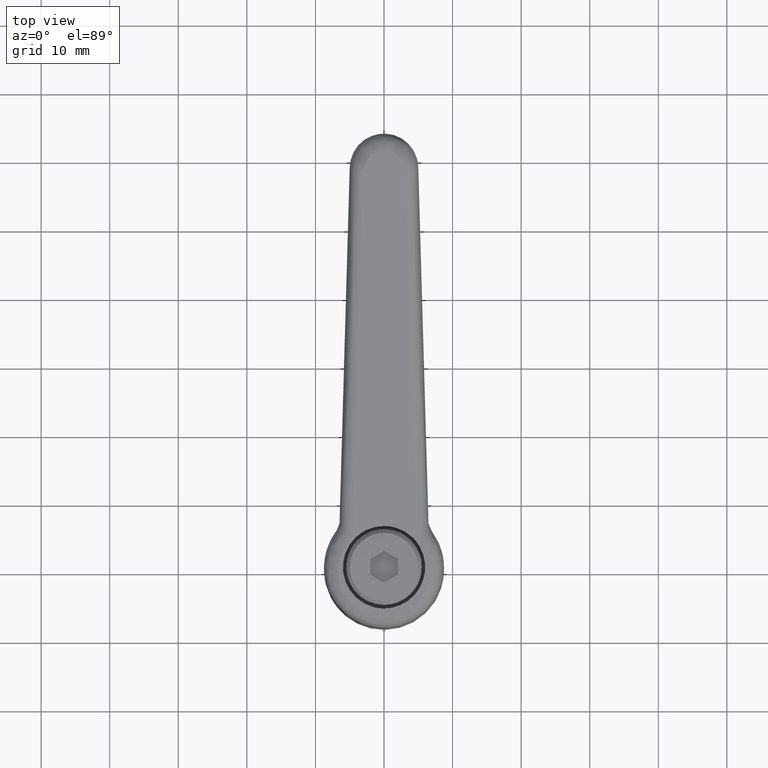
[diagram: clean part render]
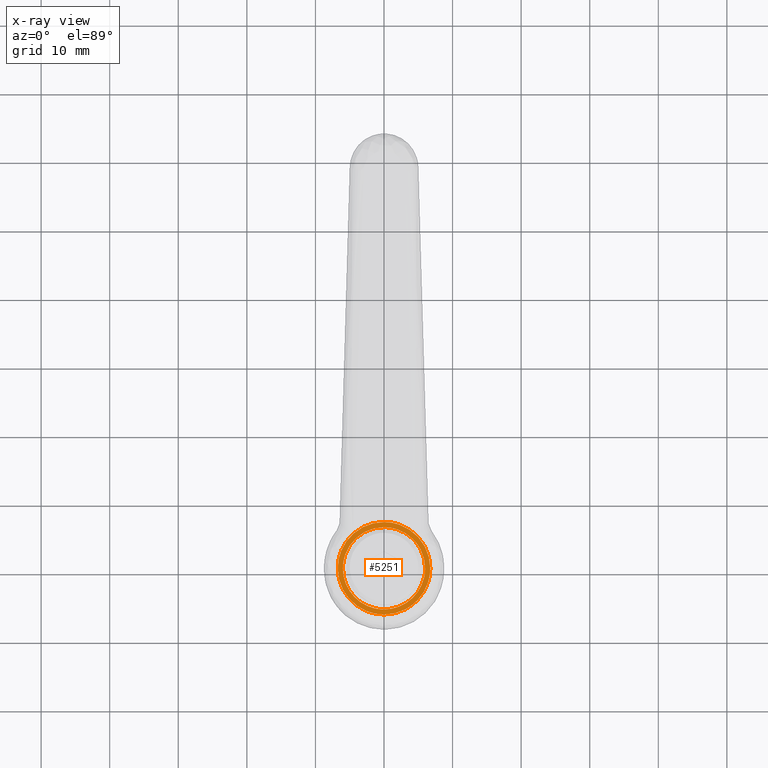
[diagram: x-ray — body ghosted, one internal face saturated and labeled with its STEP entity id]
A machine part, top view, then the same camera in x-ray: the body is ghosted and one INTERNAL B-rep face — a face not visible from any outside direction — is saturated and labeled: STEP entity #5251.
In plain terms, the highlighted face is a freeform B-spline surface patch.
Its self-contained STEP definition (entity closure, byte-faithful):
#1597=CARTESIAN_POINT('',(-6.750000000000000,0.0,20.0));
#1598=VERTEX_POINT('',#1597);
#1599=CARTESIAN_POINT('',(-4.707665798021076,-4.837393944738751,19.999999999999151));
#1600=VERTEX_POINT('',#1599);
#1601=CARTESIAN_POINT('',(-6.750000000000000,0.0,20.0));
#1602=CARTESIAN_POINT('',(-6.750038185678390,-0.393254284735144,19.999999999999918));
#1603=CARTESIAN_POINT('',(-6.683526633551377,-1.151658683088132,19.999999999999851));
#1604=CARTESIAN_POINT('',(-6.391058121284464,-2.269490425884854,19.999999999999581));
#1605=CARTESIAN_POINT('',(-5.810483489630783,-3.554267981150975,19.999999999999439));
#1606=CARTESIAN_POINT('',(-5.170879859645112,-4.386982033101055,19.999999999999211));
#1607=CARTESIAN_POINT('',(-4.707665798021076,-4.837393944738751,19.999999999999151));
#1608=B_SPLINE_CURVE_WITH_KNOTS('',3,(#1601,#1602,#1603,#1604,#1605,#1606,#1607),.UNSPECIFIED.,.F.,.U.,(4,1,1,1,4),(0.000000010771218,1.179762185913205,2.275270016881943,3.455019347370328,5.393207026882043),.UNSPECIFIED.);
#1609=EDGE_CURVE('',#1598,#1600,#1608,.T.);
#1679=CARTESIAN_POINT('',(4.560234038271471,-4.976622154126911,20.000000000000099));
#1680=VERTEX_POINT('',#1679);
#1686=CARTESIAN_POINT('',(6.750000000000000,0.0,20.0));
#1687=VERTEX_POINT('',#1686);
#1688=CARTESIAN_POINT('',(4.560234038271471,-4.976622154126911,20.000000000000099));
#1689=CARTESIAN_POINT('',(4.925607465358238,-4.641948461021785,20.000000000000071));
#1690=CARTESIAN_POINT('',(5.485500913950914,-4.001938006583835,20.000000000000099));
#1691=CARTESIAN_POINT('',(6.151828972380275,-2.867643784168084,20.000000000000060));
#1692=CARTESIAN_POINT('',(6.623736119077808,-1.573802544141939,20.000000000000039));
#1693=CARTESIAN_POINT('',(6.750149775756673,-0.553783316505794,20.000000000000028));
#1694=CARTESIAN_POINT('',(6.750000000000000,0.0,20.0));
#1695=B_SPLINE_CURVE_WITH_KNOTS('',3,(#1688,#1689,#1690,#1691,#1692,#1693,#1694),.UNSPECIFIED.,.F.,.U.,(4,1,1,1,4),(9.224710E-009,1.486438053548430,2.535695742643572,3.934686411821348,5.596001101551710),.UNSPECIFIED.);
#1696=EDGE_CURVE('',#1680,#1687,#1695,.T.);
#1698=CARTESIAN_POINT('',(-0.000000758071952,6.749999999999957,20.0));
#1699=VERTEX_POINT('',#1698);
#1700=CARTESIAN_POINT('',(6.750000000000000,0.0,20.0));
#1701=CARTESIAN_POINT('',(6.750056323670788,0.441789205045798,20.000000000000039));
#1702=CARTESIAN_POINT('',(6.671092770518670,1.242504208813118,19.999999999999940));
#1703=CARTESIAN_POINT('',(6.323771332923881,2.468446269922626,20.000000000000071));
#1704=CARTESIAN_POINT('',(5.842914248746077,3.438523456837903,19.999999999999989));
#1705=CARTESIAN_POINT('',(5.232508223821158,4.293904337446858,20.000000000000011));
#1706=CARTESIAN_POINT('',(4.497695625690686,5.085085511637447,19.999999999999918));
#1707=CARTESIAN_POINT('',(3.426653323212183,5.879447754692555,20.000000000000050));
#1708=CARTESIAN_POINT('',(2.156776649321563,6.442326779934655,20.000000000000199));
#1709=CARTESIAN_POINT('',(0.994010837295494,6.703345652593730,19.999999999999869));
#1710=CARTESIAN_POINT('',(0.303721785535678,6.750006392036436,19.999999999999940));
#1711=CARTESIAN_POINT('',(-0.000000758071952,6.749999999999957,20.0));
#1712=B_SPLINE_CURVE_WITH_KNOTS('',3,(#1700,#1701,#1702,#1703,#1704,#1705,#1706,#1707,#1708,#1709,#1710,#1711),.UNSPECIFIED.,.F.,.U.,(4,1,1,1,1,1,1,1,1,4),(0.000000041502389,1.325367248377678,2.402226640024320,3.810436648971320,4.555954236093545,5.549952506493577,7.041004735815335,8.532056593624022,9.691767720149768,10.602942161672370),.UNSPECIFIED.);
#1713=EDGE_CURVE('',#1687,#1699,#1712,.T.);
#1715=CARTESIAN_POINT('',(-0.000000758071952,6.749999999999957,20.0));
#1716=CARTESIAN_POINT('',(-0.552246733548002,6.750143378676395,19.999999999999989));
#1717=CARTESIAN_POINT('',(-1.573789559420989,6.623892309786103,20.0));
#1718=CARTESIAN_POINT('',(-3.008329577036993,6.100752785276866,19.999999999999972));
#1719=CARTESIAN_POINT('',(-4.111396341902147,5.402174830602912,20.000000000000021));
#1720=CARTESIAN_POINT('',(-4.922735265970868,4.648378233222027,19.999999999999989));
#1721=CARTESIAN_POINT('',(-5.519428854269469,3.921318995340536,20.000000000000011));
#1722=CARTESIAN_POINT('',(-6.042331124343659,3.072767087495429,20.0));
#1723=CARTESIAN_POINT('',(-6.424119718823476,2.151004093835711,20.0));
#1724=CARTESIAN_POINT('',(-6.686252901125185,1.104445950331156,19.999999999999979));
#1725=CARTESIAN_POINT('',(-6.750046853290801,0.414173856440786,20.000000000000060));
#1726=CARTESIAN_POINT('',(-6.750000000000000,0.0,20.0));
#1727=B_SPLINE_CURVE_WITH_KNOTS('',3,(#1715,#1716,#1717,#1718,#1719,#1720,#1721,#1722,#1723,#1724,#1725,#1726),.UNSPECIFIED.,.F.,.U.,(4,1,1,1,1,1,1,1,1,4),(0.000000041765933,1.656697258566371,3.064916961982017,4.555953868551320,5.549952059532936,6.378312274120171,7.372356072904725,8.532055906217398,9.360422728651365,10.602941307143229),.UNSPECIFIED.);
#1728=EDGE_CURVE('',#1699,#1598,#1727,.T.);
#1747=CARTESIAN_POINT('',(0.000000758071827,-6.749999999999957,20.0));
#1748=VERTEX_POINT('',#1747);
#1749=CARTESIAN_POINT('',(-4.707665798021076,-4.837393944738751,19.999999999999151));
#1750=CARTESIAN_POINT('',(-4.377138211324646,-5.159158331157905,19.999999999999240));
#1751=CARTESIAN_POINT('',(-3.756695359648027,-5.649830627850707,19.999999999999300));
#1752=CARTESIAN_POINT('',(-2.631219983117204,-6.256667769968110,19.999999999999559));
#1753=CARTESIAN_POINT('',(-1.410946325213157,-6.652299270372523,19.999999999999741));
#1754=CARTESIAN_POINT('',(-0.461277569862249,-6.750058371626013,19.999999999999940));
#1755=CARTESIAN_POINT('',(0.000000758071827,-6.749999999999957,20.0));
#1756=B_SPLINE_CURVE_WITH_KNOTS('',3,(#1749,#1750,#1751,#1752,#1753,#1754,#1755),.UNSPECIFIED.,.F.,.U.,(4,1,1,1,4),(0.000000011848202,1.383836352493222,2.360672957662275,3.825899106862275,5.209735376491064),.UNSPECIFIED.);
#1757=EDGE_CURVE('',#1600,#1748,#1756,.T.);
#1759=CARTESIAN_POINT('',(0.000000758071827,-6.749999999999957,20.0));
#1760=CARTESIAN_POINT('',(0.417245049452214,-6.750035969097676,20.000000000000011));
#1761=CARTESIAN_POINT('',(1.277797074981606,-6.669977280524604,20.000000000000021));
#1762=CARTESIAN_POINT('',(2.460086536325553,-6.324951810019348,20.000000000000050));
#1763=CARTESIAN_POINT('',(3.583374521852676,-5.763338750784429,20.000000000000050));
#1764=CARTESIAN_POINT('',(4.233414779871313,-5.276161504110347,20.000000000000110));
#1765=CARTESIAN_POINT('',(4.560234038271471,-4.976622154126911,20.000000000000099));
#1766=B_SPLINE_CURVE_WITH_KNOTS('',3,(#1759,#1760,#1761,#1762,#1763,#1764,#1765),.UNSPECIFIED.,.F.,.U.,(4,1,1,1,4),(0.000000012162832,1.251735316232463,2.581696561639235,3.676971094403203,5.006940638896506),.UNSPECIFIED.);
#1767=EDGE_CURVE('',#1748,#1680,#1766,.T.);
#1822=CARTESIAN_POINT('',(0.000001651102343,-5.999999999999773,20.0));
#1823=VERTEX_POINT('',#1822);
#1824=CARTESIAN_POINT('',(4.299906118365543,-4.184592253101830,20.0));
#1825=VERTEX_POINT('',#1824);
#1826=CARTESIAN_POINT('',(0.000001651102343,-5.999999999999773,20.0));
#1827=CARTESIAN_POINT('',(0.524359329320542,-6.000179376625479,20.000000000000011));
#1828=CARTESIAN_POINT('',(1.398153123840613,-5.884668438775866,20.000000000000028));
#1829=CARTESIAN_POINT('',(2.410709284676792,-5.515528419666179,19.999999999999950));
#1830=CARTESIAN_POINT('',(3.360795113087596,-5.012593535807996,20.000000000000121));
#1831=CARTESIAN_POINT('',(3.934323755493395,-4.560496034099676,19.999999999999901));
#1832=CARTESIAN_POINT('',(4.299906118365543,-4.184592253101830,20.0));
#1833=B_SPLINE_CURVE_WITH_KNOTS('',3,(#1826,#1827,#1828,#1829,#1830,#1831,#1832),.UNSPECIFIED.,.F.,.U.,(4,1,1,1,4),(0.000000015615138,1.573022404853729,2.621683850958706,3.220937955138954,4.793960344398427),.UNSPECIFIED.);
#1834=EDGE_CURVE('',#1823,#1825,#1833,.T.);
#1836=CARTESIAN_POINT('',(-6.0,0.0,20.0));
#1837=VERTEX_POINT('',#1836);
#1838=CARTESIAN_POINT('',(-6.0,0.0,20.0));
#1839=CARTESIAN_POINT('',(-6.000023101251645,-0.343605461124679,20.000000000000021));
#1840=CARTESIAN_POINT('',(-5.934495730503127,-1.104462216857677,20.0));
#1841=CARTESIAN_POINT('',(-5.645230752241627,-2.125395492763169,19.999999999999950));
#1842=CARTESIAN_POINT('',(-5.137869054391230,-3.164915355632283,20.000000000000110));
#1843=CARTESIAN_POINT('',(-4.490650721069461,-4.037603419205909,19.999999999999829));
#1844=CARTESIAN_POINT('',(-3.632732321794885,-4.815123443561749,20.000000000000242));
#1845=CARTESIAN_POINT('',(-2.692051827306129,-5.402772398989383,20.000000000000139));
#1846=CARTESIAN_POINT('',(-1.472534027291226,-5.873202113250123,19.999999999999929));
#1847=CARTESIAN_POINT('',(-0.539977252897646,-6.000193050356605,20.000000000000021));
#1848=CARTESIAN_POINT('',(0.000001651102343,-5.999999999999773,20.0));
#1849=B_SPLINE_CURVE_WITH_KNOTS('',3,(#1838,#1839,#1840,#1841,#1842,#1843,#1844,#1845,#1846,#1847,#1848),.UNSPECIFIED.,.F.,.U.,(4,1,1,1,1,1,1,1,4),(0.000000054539209,1.030823844635894,2.282577088043493,3.166167940185408,4.491552551354164,5.522350641974999,6.626833083272269,7.804952921927047,9.424838027846281),.UNSPECIFIED.);
#1850=EDGE_CURVE('',#1837,#1823,#1849,.T.);
#1852=CARTESIAN_POINT('',(-0.000001651102336,5.999999999999773,20.0));
#1853=VERTEX_POINT('',#1852);
#1854=CARTESIAN_POINT('',(-0.000001651102336,5.999999999999773,20.0));
#1855=CARTESIAN_POINT('',(-0.392699880836533,6.000046703086618,20.000000000000011));
#1856=CARTESIAN_POINT('',(-1.178078520762044,5.922623191197653,19.999999999999972));
#1857=CARTESIAN_POINT('',(-2.428944989696069,5.543286686509038,20.000000000000060));
#1858=CARTESIAN_POINT('',(-3.480386394141518,4.939175457422552,20.0));
#1859=CARTESIAN_POINT('',(-4.273024416600839,4.237997846930971,19.999999999999929));
#1860=CARTESIAN_POINT('',(-4.947722832563114,3.456067031491849,20.000000000000171));
#1861=CARTESIAN_POINT('',(-5.520513156151882,2.473276893809986,19.999999999999961));
#1862=CARTESIAN_POINT('',(-5.915171936125256,1.227155810906441,20.000000000000011));
#1863=CARTESIAN_POINT('',(-6.000053965101985,0.417243121960447,20.0));
#1864=CARTESIAN_POINT('',(-6.0,0.0,20.0));
#1865=B_SPLINE_CURVE_WITH_KNOTS('',3,(#1854,#1855,#1856,#1857,#1858,#1859,#1860,#1861,#1862,#1863,#1864),.UNSPECIFIED.,.F.,.U.,(4,1,1,1,1,1,1,1,4),(0.000000055114851,1.178093573714179,2.356209332514347,3.902488108338402,4.786033937510833,5.522349550402957,6.994994555267173,8.173110106076363,9.424836166657467),.UNSPECIFIED.);
#1866=EDGE_CURVE('',#1853,#1837,#1865,.T.);
#1868=CARTESIAN_POINT('',(4.423663689024838,4.053540999169108,20.0));
#1869=VERTEX_POINT('',#1868);
#1870=CARTESIAN_POINT('',(4.423663689024838,4.053540999169108,20.0));
#1871=CARTESIAN_POINT('',(4.126172056432186,4.378313364061654,20.000000000000082));
#1872=CARTESIAN_POINT('',(3.478837351702000,4.944682965181518,19.999999999999869));
#1873=CARTESIAN_POINT('',(2.407579351643989,5.537179539808903,20.000000000000121));
#1874=CARTESIAN_POINT('',(1.243521871965764,5.911164440253161,19.999999999999989));
#1875=CARTESIAN_POINT('',(0.440426082456699,6.000077836202843,19.999999999999972));
#1876=CARTESIAN_POINT('',(-0.000001651102336,5.999999999999773,20.0));
#1877=B_SPLINE_CURVE_WITH_KNOTS('',3,(#1870,#1871,#1872,#1873,#1874,#1875,#1876),.UNSPECIFIED.,.F.,.U.,(4,1,1,1,4),(0.000000014983025,1.321278763328897,2.564827767268214,3.652945832948025,4.974224581303803),.UNSPECIFIED.);
#1878=EDGE_CURVE('',#1869,#1853,#1877,.T.);
#1943=CARTESIAN_POINT('',(6.0,0.0,20.0));
#1944=VERTEX_POINT('',#1943);
#1945=CARTESIAN_POINT('',(4.299906118365543,-4.184592253101830,20.0));
#1946=CARTESIAN_POINT('',(4.585899368409701,-3.890778290984323,20.000000000000011));
#1947=CARTESIAN_POINT('',(5.142487039354925,-3.187198819261257,19.999999999999979));
#1948=CARTESIAN_POINT('',(5.656253643476862,-2.113347873401352,20.000000000000011));
#1949=CARTESIAN_POINT('',(5.940899223245338,-1.012980942858282,20.000000000000039));
#1950=CARTESIAN_POINT('',(6.000035683674646,-0.361786173568019,20.000000000000011));
#1951=CARTESIAN_POINT('',(6.0,0.0,20.0));
#1952=B_SPLINE_CURVE_WITH_KNOTS('',3,(#1945,#1946,#1947,#1948,#1949,#1950,#1951),.UNSPECIFIED.,.F.,.U.,(4,1,1,1,4),(0.000000015972861,1.230076774569807,2.677221849481137,3.545514506001582,4.630875478836473),.UNSPECIFIED.);
#1953=EDGE_CURVE('',#1825,#1944,#1952,.T.);
#1985=CARTESIAN_POINT('',(6.0,0.0,20.0));
#1986=CARTESIAN_POINT('',(6.000108583862521,0.463614723477924,20.000000000000011));
#1987=CARTESIAN_POINT('',(5.910874491723449,1.228507497533758,19.999999999999979));
#1988=CARTESIAN_POINT('',(5.622695911992494,2.136979972743765,20.000000000000050));
#1989=CARTESIAN_POINT('',(5.198188108832466,3.065582750749166,19.999999999999869));
#1990=CARTESIAN_POINT('',(4.784003544746054,3.660572665508356,20.000000000000039));
#1991=CARTESIAN_POINT('',(4.423663689024838,4.053540999169108,20.0));
#1992=B_SPLINE_CURVE_WITH_KNOTS('',3,(#1985,#1986,#1987,#1988,#1989,#1990,#1991),.UNSPECIFIED.,.F.,.U.,(4,1,1,1,4),(0.000000015614917,1.390820566806136,2.294838282543237,2.851173763846359,4.450614391539384),.UNSPECIFIED.);
#1993=EDGE_CURVE('',#1944,#1869,#1992,.T.);
#5230=CARTESIAN_POINT('',(-7.424324973834381,7.424324973834333,20.0));
#5231=CARTESIAN_POINT('',(7.424325335932597,7.424324973834333,20.0));
#5232=CARTESIAN_POINT('',(-7.424324973834381,-7.424325335932550,20.0));
#5233=CARTESIAN_POINT('',(7.424325335932597,-7.424325335932550,20.0));
#5234=B_SPLINE_SURFACE_WITH_KNOTS('',1,1,((#5230,#5232),(#5231,#5233)),.UNSPECIFIED.,.F.,.F.,.U.,(2,2),(2,2),(0.0,14.848650309766979),(0.0,14.848650309766880),.UNSPECIFIED.);
#5235=ORIENTED_EDGE('',*,*,#1728,.F.);
#5236=ORIENTED_EDGE('',*,*,#1713,.F.);
#5237=ORIENTED_EDGE('',*,*,#1696,.F.);
#5238=ORIENTED_EDGE('',*,*,#1767,.F.);
#5239=ORIENTED_EDGE('',*,*,#1757,.F.);
#5240=ORIENTED_EDGE('',*,*,#1609,.F.);
#5241=EDGE_LOOP('',(#5235,#5236,#5237,#5238,#5239,#5240));
#5242=FACE_OUTER_BOUND('',#5241,.T.);
#5243=ORIENTED_EDGE('',*,*,#1850,.T.);
#5244=ORIENTED_EDGE('',*,*,#1834,.T.);
#5245=ORIENTED_EDGE('',*,*,#1953,.T.);
#5246=ORIENTED_EDGE('',*,*,#1993,.T.);
#5247=ORIENTED_EDGE('',*,*,#1878,.T.);
#5248=ORIENTED_EDGE('',*,*,#1866,.T.);
#5249=EDGE_LOOP('',(#5243,#5244,#5245,#5246,#5247,#5248));
#5250=FACE_BOUND('',#5249,.T.);
#5251=ADVANCED_FACE('',(#5242,#5250),#5234,.T.);